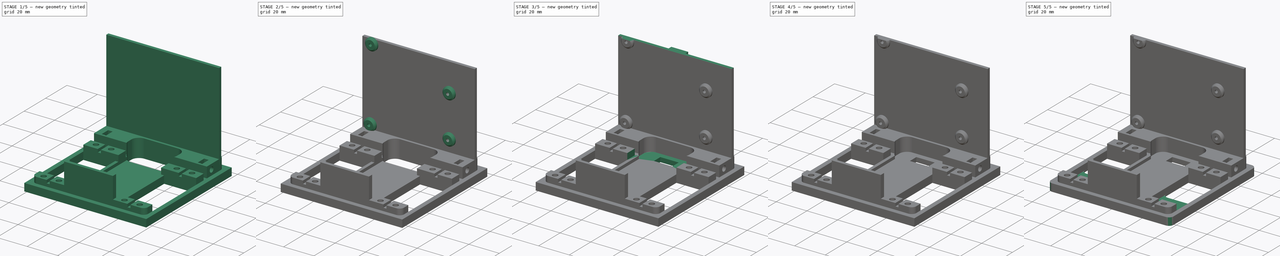
[diagram: build sequence overview — one tinted view per stage of 5, left to right]
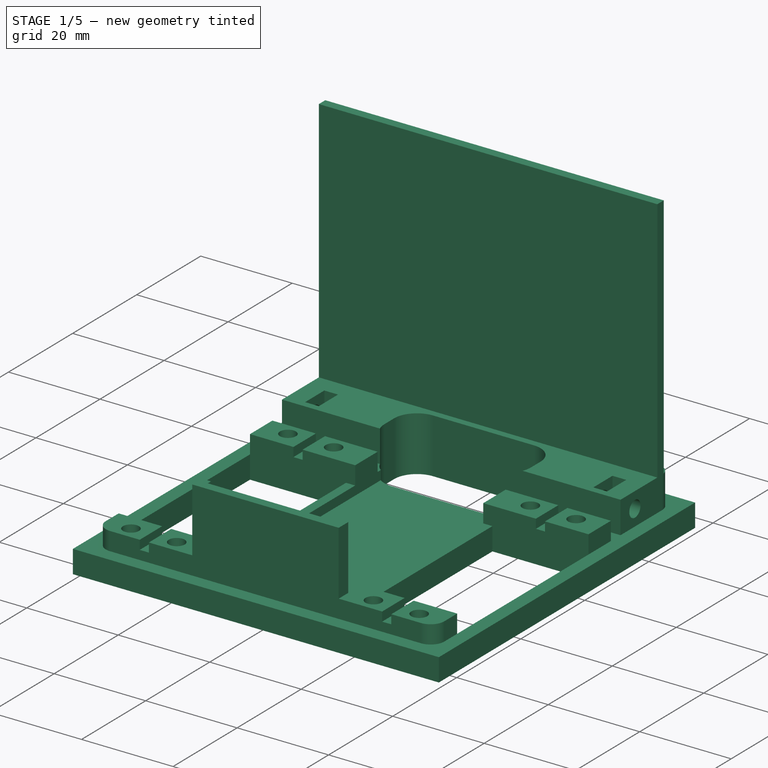
[diagram: stage 1 of 5 — iso view after this stage's code; geometry added in this stage tinted green]
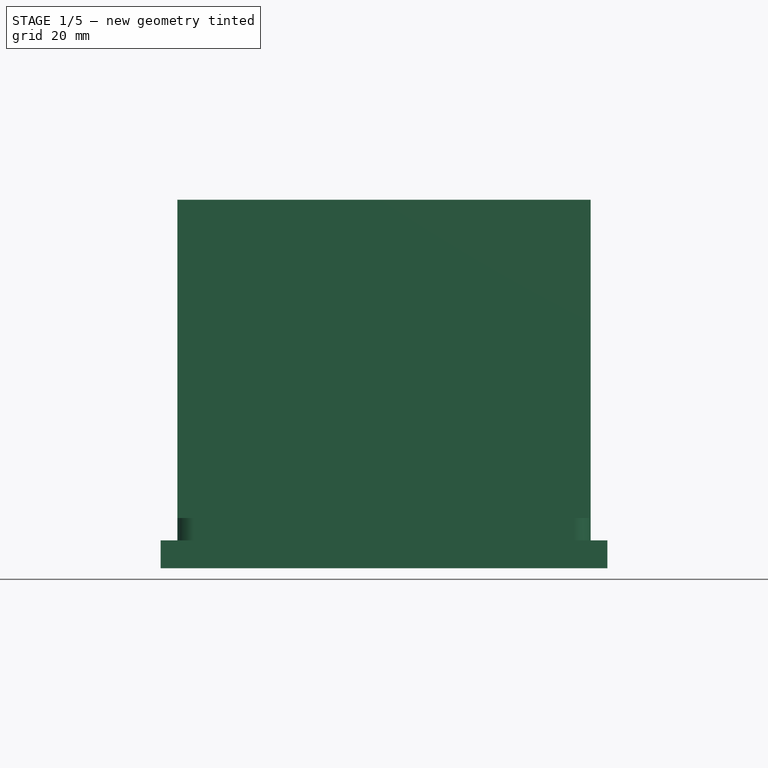
[diagram: stage 1 of 5 — front view after this stage's code; geometry added in this stage tinted green]
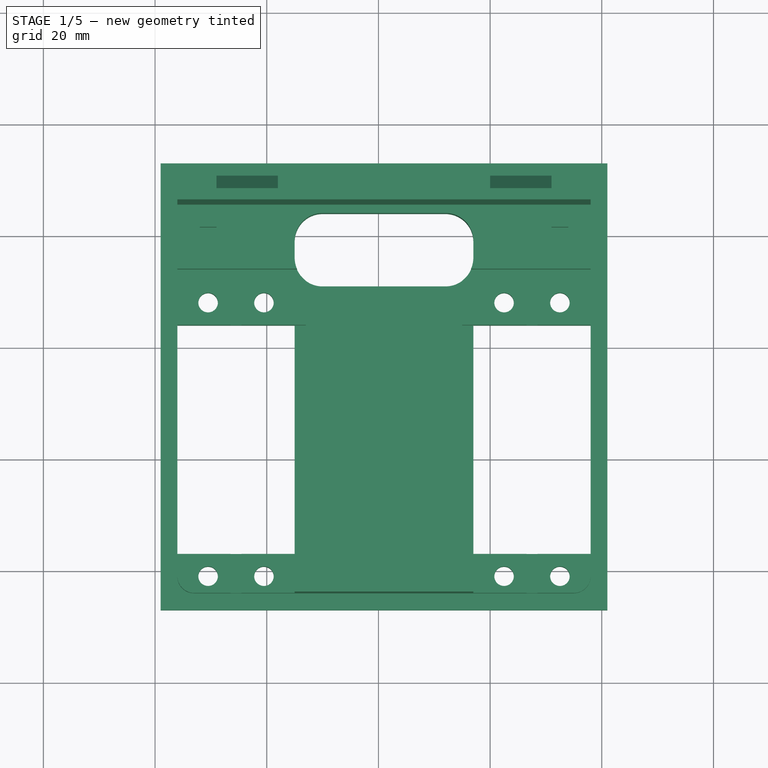
[diagram: stage 1 of 5 — top view after this stage's code; geometry added in this stage tinted green]
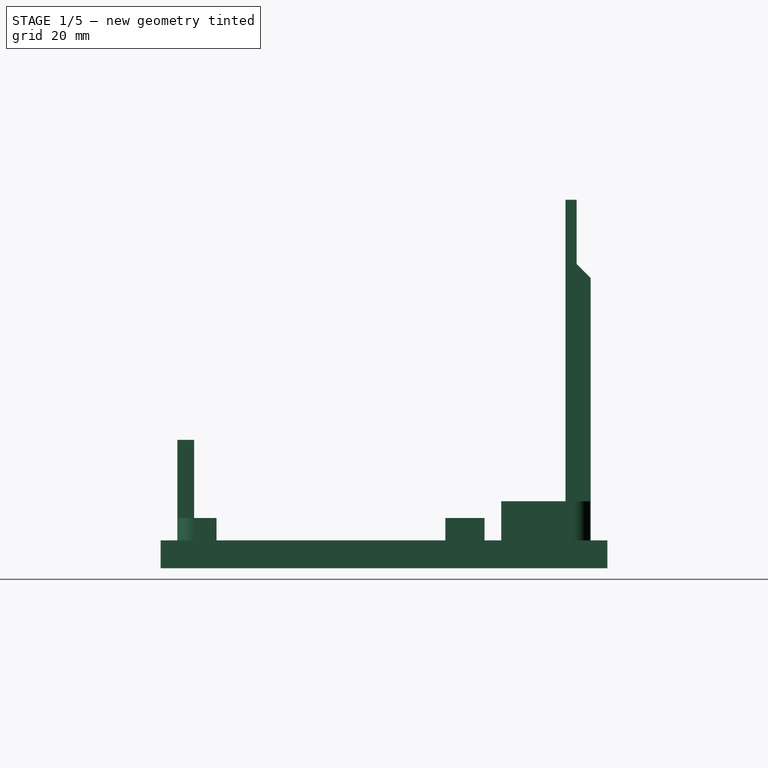
[diagram: stage 1 of 5 — right view after this stage's code; geometry added in this stage tinted green]
FCSTD DOCUMENT  (FreeCAD 0.16R6706 (Git))
Label: chassis_nano_sensor_shield
License: All rights reserved
LicenseURL: http://en.wikipedia.org/wiki/All_rights_reserved
objects: Sketcher::SketchObject×12, PartDesign::Pad×7, PartDesign::Pocket×5, PartDesign::Chamfer×2, PartDesign::Fillet×2, Part::Feature×1
note: 41 computed .brp shape members not serialized (recipe doc carries the construction recipe); baked Part::Feature solids carry a one-line shape summary decoded from their .brp

FEATURE [Part::Feature] Part__Feature  label="chassis"
  shape: bbox 80 x 80 x 55 mm, 137 faces (baked)
FEATURE [Sketcher::SketchObject] Sketch
  Placement = pos=(0,82.5,0) rot=(1,0,0;1.5708rad)
  Support = -> Part__Feature [Face104]
  sketch-geometry (4):
    g0: LineSegment StartX=-251.613 StartY=118.335 StartZ=0 EndX=-219.254 EndY=118.335 EndZ=0
    g1: LineSegment StartX=-219.254 StartY=118.335 StartZ=0 EndX=-219.254 EndY=87.8581 EndZ=0
    g2: LineSegment StartX=-219.254 StartY=87.8581 StartZ=0 EndX=-251.613 EndY=87.8581 EndZ=0
    g3: LineSegment StartX=-251.613 StartY=87.8581 StartZ=0 EndX=-251.613 EndY=118.335 EndZ=0
  constraints (8):
    c: Coincident(g0,g1)
    c: Coincident(g1,g2)
    c: Coincident(g2,g3)
    c: Coincident(g3,g0)
    c: Horizontal(g0)
    c: Horizontal(g2)
    c: Vertical(g1)
    c: Vertical(g3)
FEATURE [PartDesign::Pocket] Pocket
  Length = 3
  Sketch = -> Sketch
  Type = 0
FEATURE [Sketcher::SketchObject] Sketch001
  Placement = pos=(0,85.5,0) rot=(1,0,0;1.5708rad)
  Support = -> Pocket [Face127]
  sketch-geometry (4):
    g0: LineSegment StartX=-249.425 StartY=116.897 StartZ=0 EndX=-222.401 EndY=116.897 EndZ=0
    g1: LineSegment StartX=-222.401 StartY=116.897 StartZ=0 EndX=-222.401 EndY=90.6258 EndZ=0
    g2: LineSegment StartX=-222.401 StartY=90.6258 StartZ=0 EndX=-249.425 EndY=90.6258 EndZ=0
    g3: LineSegment StartX=-249.425 StartY=90.6258 StartZ=0 EndX=-249.425 EndY=116.897 EndZ=0
  constraints (8):
    c: Coincident(g0,g1)
    c: Coincident(g1,g2)
    c: Coincident(g2,g3)
    c: Coincident(g3,g0)
    c: Horizontal(g0)
    c: Horizontal(g2)
    c: Vertical(g1)
    c: Vertical(g3)
FEATURE [PartDesign::Pad] Pad
  Length = 2
  Length2 = 100
  Reversed = true
  Sketch = -> Sketch001
  Type = 0
FEATURE [Sketcher::SketchObject] Sketch002
  ExternalGeometry = -> [Pad]
  Placement = pos=(0,85.5,0) rot=(1,0,0;1.5708rad)
  Support = -> Pad [Face123]
  sketch-geometry (4):
    g0: LineSegment StartX=-276 StartY=77 StartZ=0 EndX=-202 EndY=77 EndZ=0
    g1: LineSegment StartX=-276 StartY=77 StartZ=0 EndX=-276 EndY=131 EndZ=0
    g2: LineSegment StartX=-276 StartY=131 StartZ=0 EndX=-202 EndY=131 EndZ=0
    g3: LineSegment StartX=-202 StartY=131 StartZ=0 EndX=-202 EndY=77 EndZ=0
  constraints (10):
    c: Coincident(g0,g-3)
    c: Coincident(g0,g-4)
    c: Coincident(g0,g1)
    c: Vertical(g1)
    c: Coincident(g1,g2)
    c: Horizontal(g2)
    c: Coincident(g2,g3)
    c: Coincident(g3,g0)
    c: Vertical(g3)
    c: DistanceY(g3,g3) = 54
FEATURE [PartDesign::Pad] Pad001
  Length = 2
  Length2 = 100
  Reversed = true
  Sketch = -> Sketch002
  Type = 0
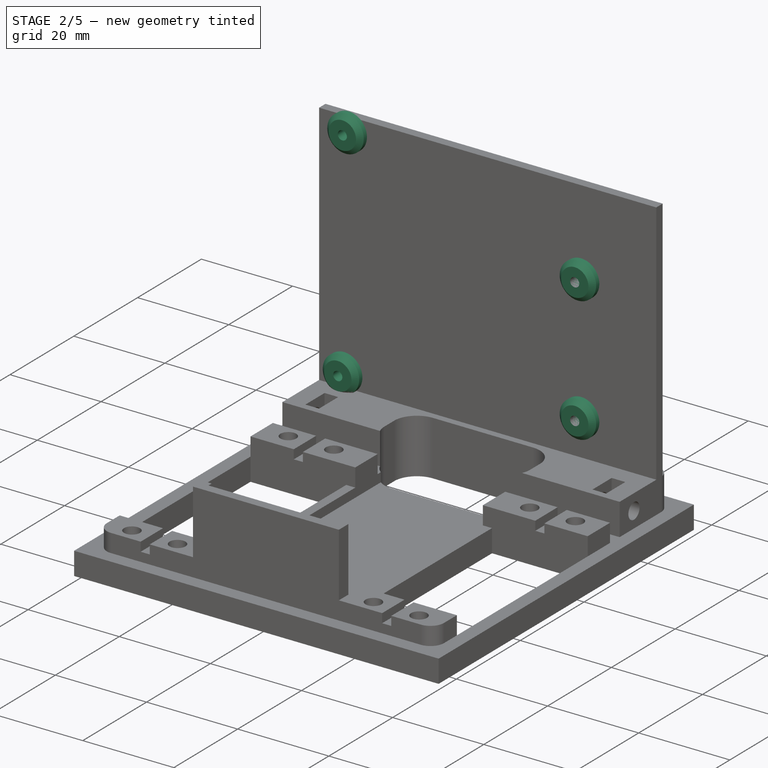
[diagram: stage 2 of 5 — iso view after this stage's code; geometry added in this stage tinted green]
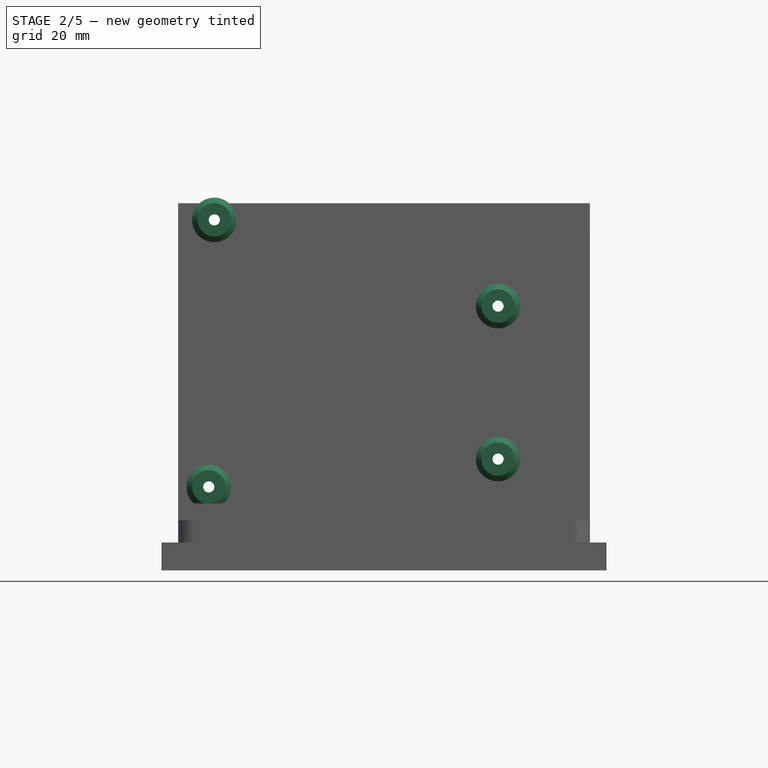
[diagram: stage 2 of 5 — front view after this stage's code; geometry added in this stage tinted green]
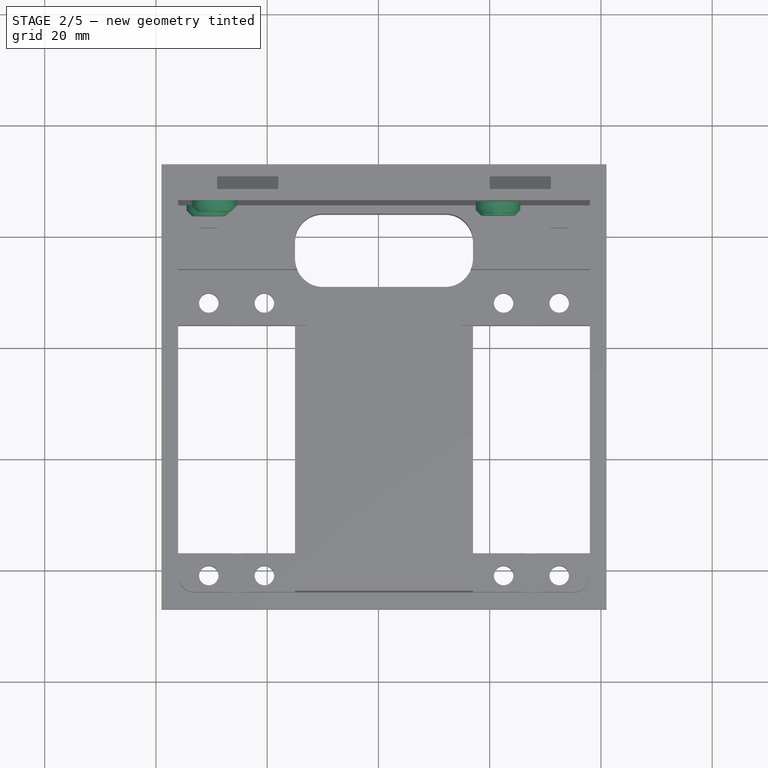
[diagram: stage 2 of 5 — top view after this stage's code; geometry added in this stage tinted green]
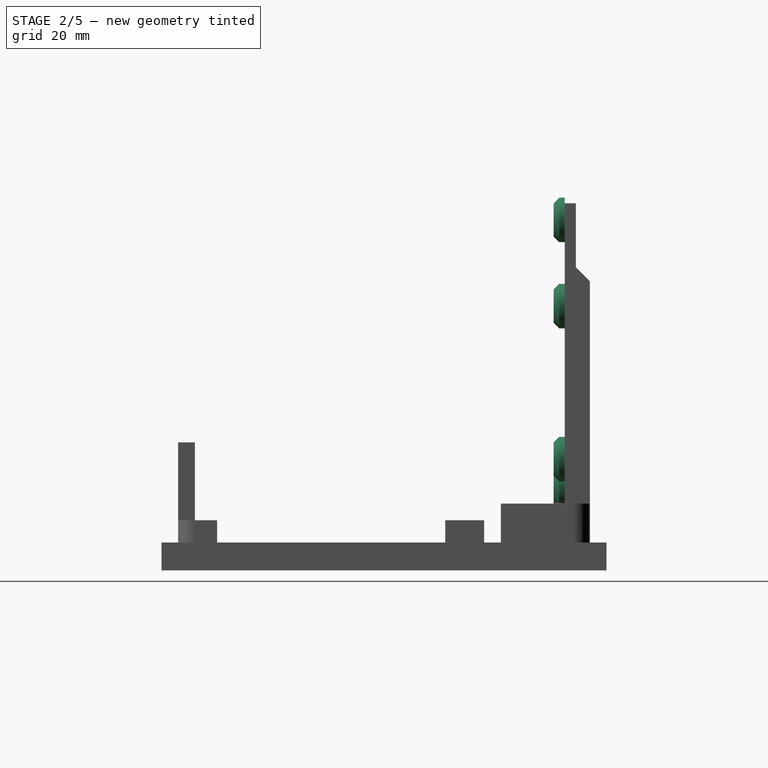
[diagram: stage 2 of 5 — right view after this stage's code; geometry added in this stage tinted green]
FEATURE [Sketcher::SketchObject] Sketch003
  ExternalGeometry = -> [Pad001]
  Placement = pos=(0,85.5,0) rot=(1,0,0;1.5708rad)
  Support = -> Pad001 [Face128]
  sketch-geometry (8):
    g0: LineSegment [constr] StartX=-273 StartY=130.5 StartZ=0 EndX=-216 EndY=130.5 EndZ=0
    g1: LineSegment [constr] StartX=-216 StartY=130.5 StartZ=0 EndX=-216 EndY=77.5 EndZ=0
    g2: LineSegment [constr] StartX=-216 StartY=77.5 StartZ=0 EndX=-273 EndY=77.5 EndZ=0
    g3: LineSegment [constr] StartX=-273 StartY=77.5 StartZ=0 EndX=-273 EndY=130.5 EndZ=0
    g4: Circle CenterX=-269.5 CenterY=128 CenterZ=0 NormalX=0 NormalY=0 NormalZ=1 Radius=1
    g5: Circle CenterX=-218.5 CenterY=112.5 CenterZ=0 NormalX=0 NormalY=0 NormalZ=1 Radius=1
    g6: Circle CenterX=-270.5 CenterY=80 CenterZ=0 NormalX=0 NormalY=0 NormalZ=1 Radius=1
    g7: Circle CenterX=-218.5 CenterY=85 CenterZ=0 NormalX=0 NormalY=0 NormalZ=1 Radius=1
  constraints (24):
    c: Coincident(g0,g1)
    c: Coincident(g1,g2)
    c: Coincident(g2,g3)
    c: Coincident(g3,g0)
    c: Horizontal(g0)
    c: Horizontal(g2)
    c: Vertical(g1)
    c: Vertical(g3)
    c: DistanceY(g1,g1) = 53
    c: DistanceX(g0,g0) = 57
    c: DistanceX(g-3,g0) = 3
    c: DistanceY(g0,g-3) = 0.5
    c: Radius(g4) = 1
    c: Equal(g4,g6)
    c: Equal(g4,g5)
    c: Equal(g4,g7)
    c: DistanceX(g0,g4) = 3.5
    c: DistanceY(g4,g0) = 2.5
    c: DistanceX(g2,g6) = 2.5
    c: DistanceY(g2,g6) = 2.5
    c: DistanceY(g5,g0) = 18
    c: DistanceY(g7,g5) = 27.5
    c: DistanceX(g5,g0) = 2.5
    c: DistanceX(g7,g1) = 2.5
FEATURE [PartDesign::Pocket] Pocket001
  Length = 5
  Sketch = -> Sketch003
  Type = 1
FEATURE [Sketcher::SketchObject] Sketch004
  ExternalGeometry = -> [Pocket001]
  Placement = pos=(0,85.5,0) rot=(1,0,0;1.5708rad)
  Support = -> Pocket001 [Face39]
  sketch-geometry (9):
    g0: Circle CenterX=-269.5 CenterY=128 CenterZ=0 NormalX=0 NormalY=0 NormalZ=1 Radius=4
    g1: ArcOfCircle CenterX=-270.5 CenterY=80 CenterZ=0 NormalX=0 NormalY=0 NormalZ=1 Radius=4 StartAngle=5.43889 EndAngle=10.2691
    g2: Circle CenterX=-218.5 CenterY=112.5 CenterZ=0 NormalX=0 NormalY=0 NormalZ=1 Radius=4
    g3: Circle CenterX=-218.5 CenterY=85 CenterZ=0 NormalX=0 NormalY=0 NormalZ=1 Radius=4
    g4: Circle CenterX=-269.5 CenterY=128 CenterZ=0 NormalX=0 NormalY=0 NormalZ=1 Radius=1
    g5: Circle CenterX=-218.5 CenterY=112.5 CenterZ=0 NormalX=0 NormalY=0 NormalZ=1 Radius=1
    g6: Circle CenterX=-218.5 CenterY=85 CenterZ=0 NormalX=0 NormalY=0 NormalZ=1 Radius=1
    g7: Circle CenterX=-270.5 CenterY=80 CenterZ=0 NormalX=0 NormalY=0 NormalZ=1 Radius=1
    g8: LineSegment StartX=-273.157 StartY=77.01 StartZ=0 EndX=-267.843 EndY=77.01 EndZ=0
  constraints (20):
    c: Coincident(g0,g-3)
    c: Coincident(g1,g-4)
    c: Coincident(g3,g-6)
    c: Coincident(g-5,g2)
    c: Radius(g2) = 4
    c: Equal(g2,g0)
    c: Equal(g2,g1)
    c: Equal(g2,g3)
    c: Coincident(g4,g0)
    c: Coincident(g5,g2)
    c: Coincident(g6,g3)
    c: Coincident(g7,g1)
    c: Radius(g4) = 1
    c: Equal(g4,g5)
    c: Equal(g4,g6)
    c: Equal(g4,g7)
    c: Horizontal(g8)
    c: Coincident(g1,g8)
    c: Coincident(g1,g8)
    c: DistanceY(g1,g-7) = -0.01
FEATURE [PartDesign::Pad] Pad002
  Length = 2
  Length2 = 100
  Sketch = -> Sketch004
  Type = 0
FEATURE [PartDesign::Chamfer] Chamfer
  Base = -> Pad002 [Edge309,Edge315,Edge313,Edge311]
  Size = 1
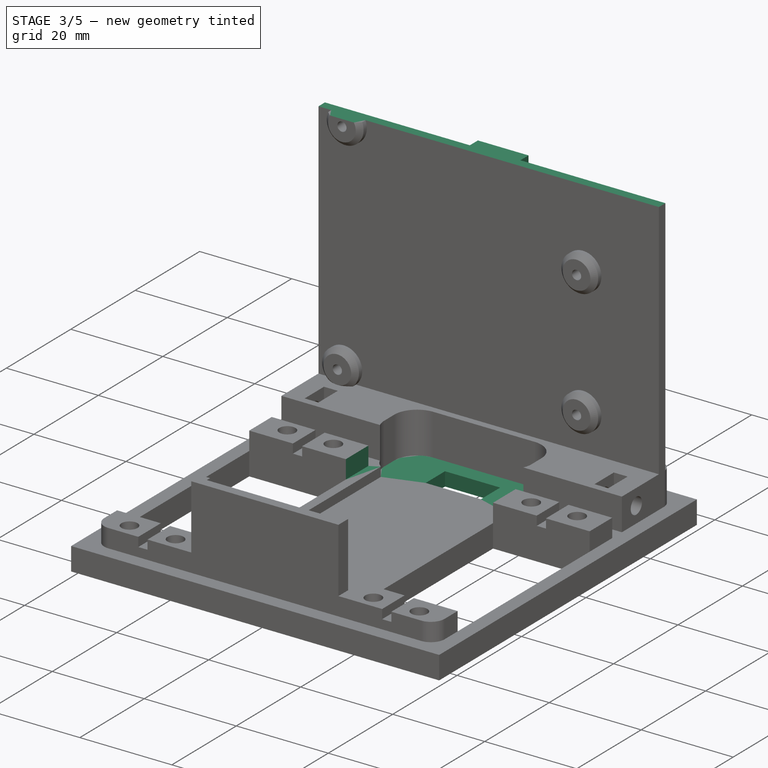
[diagram: stage 3 of 5 — iso view after this stage's code; geometry added in this stage tinted green]
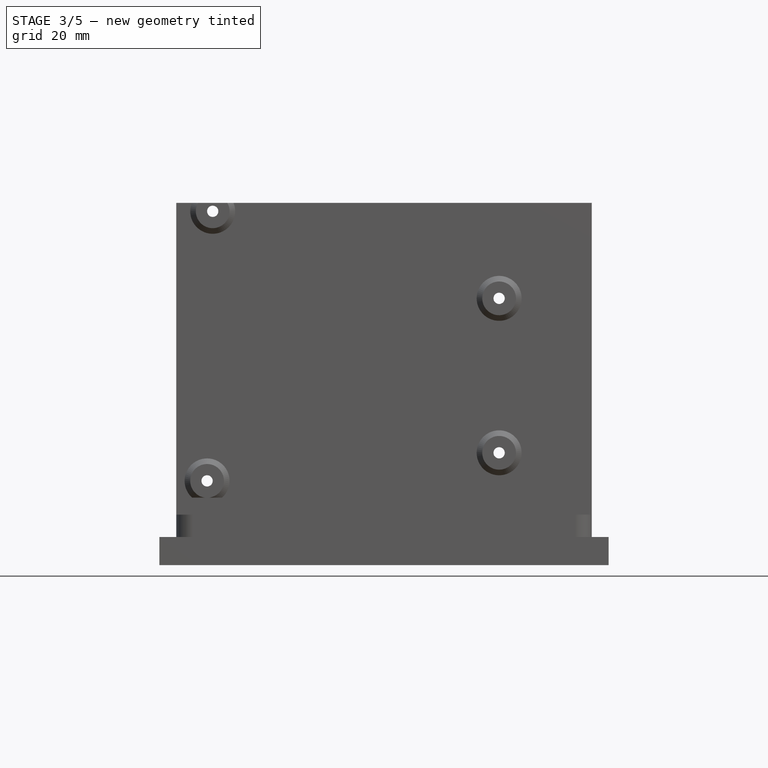
[diagram: stage 3 of 5 — front view after this stage's code; geometry added in this stage tinted green]
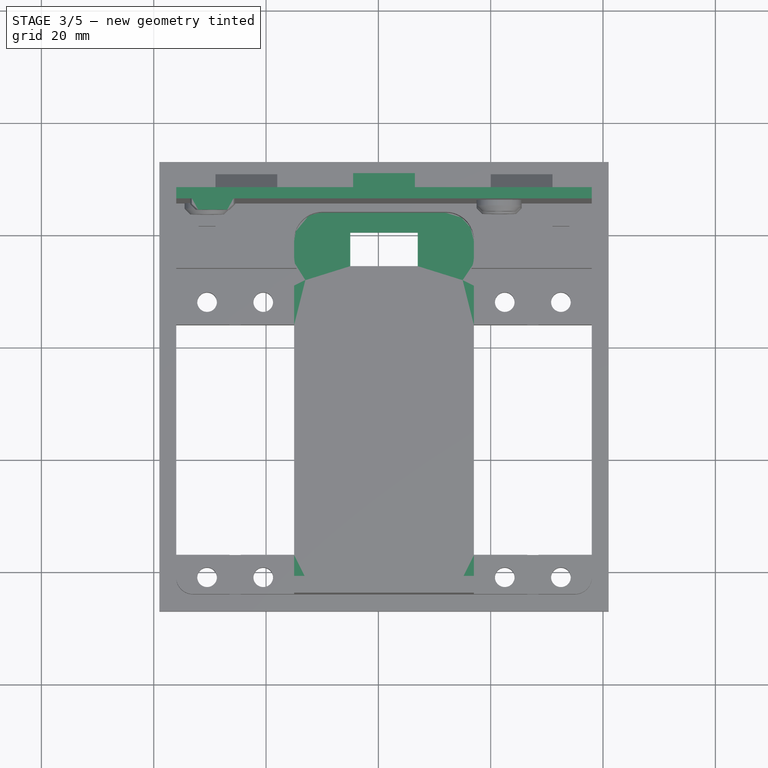
[diagram: stage 3 of 5 — top view after this stage's code; geometry added in this stage tinted green]
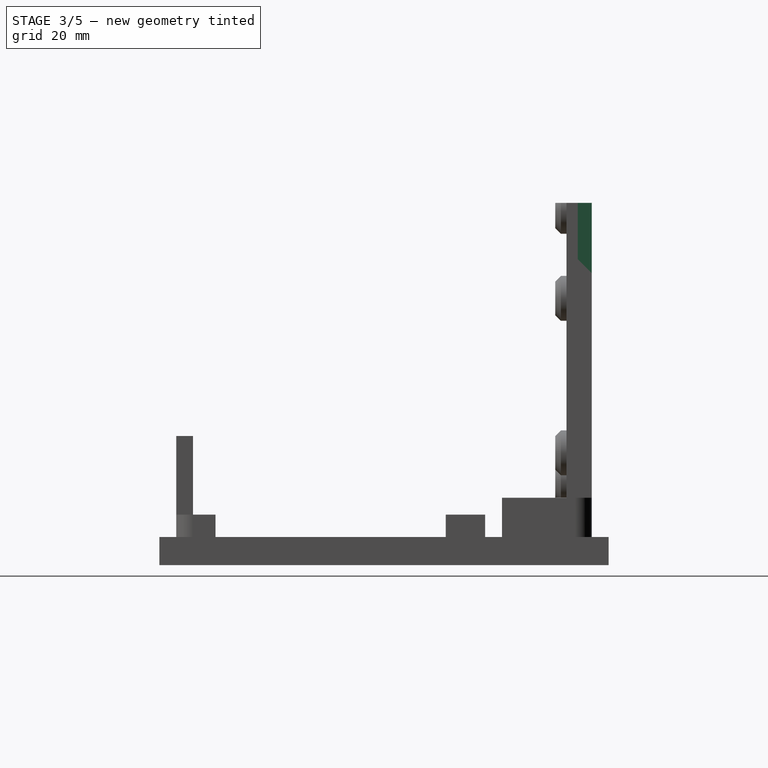
[diagram: stage 3 of 5 — right view after this stage's code; geometry added in this stage tinted green]
FEATURE [Sketcher::SketchObject] Sketch005
  ExternalGeometry = -> [Chamfer]
  Placement = pos=(0,87.5,0) rot=(0,0.707107,0.707107;3.14159rad)
  Support = -> Chamfer [Face17]
  sketch-geometry (4):
    g0: LineSegment StartX=233.5 StartY=131 StartZ=0 EndX=244.5 EndY=131 EndZ=0
    g1: LineSegment StartX=244.5 StartY=131 StartZ=0 EndX=244.5 EndY=96 EndZ=0
    g2: LineSegment StartX=244.5 StartY=96 StartZ=0 EndX=233.5 EndY=96 EndZ=0
    g3: LineSegment StartX=233.5 StartY=96 StartZ=0 EndX=233.5 EndY=131 EndZ=0
  constraints (12):
    c: Coincident(g0,g1)
    c: Coincident(g1,g2)
    c: Coincident(g2,g3)
    c: Coincident(g3,g0)
    c: Horizontal(g0)
    c: Horizontal(g2)
    c: Vertical(g1)
    c: Vertical(g3)
    c: DistanceX(g0,g0) = 11
    c: DistanceY(g1,g1) = 35
    c: DistanceY(g0,g-3) = 0
    c: DistanceX(g-3,g0) = 31.5
FEATURE [PartDesign::Pad] Pad003
  Length = 2.5
  Length2 = 100
  Sketch = -> Sketch005
  Type = 0
FEATURE [Sketcher::SketchObject] Sketch006
  ExternalGeometry = -> [Pad003]
  Placement = pos=(0,0,74) rot=(0,0,1;0rad)
  Support = -> Pad003 [Face78]
  sketch-geometry (4):
    g0: LineSegment StartX=-255 StartY=71 StartZ=0 EndX=-223 EndY=71 EndZ=0
    g1: LineSegment StartX=-223 StartY=71 StartZ=0 EndX=-223 EndY=19 EndZ=0
    g2: LineSegment StartX=-223 StartY=19 StartZ=0 EndX=-255 EndY=19 EndZ=0
    g3: LineSegment StartX=-255 StartY=19 StartZ=0 EndX=-255 EndY=71 EndZ=0
  constraints (11):
    c: Coincident(g0,g1)
    c: Coincident(g1,g2)
    c: Coincident(g2,g3)
    c: Coincident(g3,g0)
    c: Horizontal(g0)
    c: Horizontal(g2)
    c: Vertical(g1)
    c: Vertical(g3)
    c: Coincident(g2,g-3)
    c: Coincident(g-4,g1)
    c: DistanceY(g-5,g0) = 0
FEATURE [PartDesign::Pocket] Pocket002
  Length = 4
  Sketch = -> Sketch006
  Type = 0
FEATURE [Sketcher::SketchObject] Sketch007
  ExternalGeometry = -> [Pocket002]
  Placement = pos=(0,0,65) rot=(1,0,0;3.14159rad)
  Support = -> Pocket002 [Face29]
  sketch-geometry (8):
    g0: LineSegment StartX=-255 StartY=-84 StartZ=0 EndX=-223 EndY=-84 EndZ=0
    g1: LineSegment StartX=-223 StartY=-84 StartZ=0 EndX=-223 EndY=-71 EndZ=0
    g2: LineSegment StartX=-223 StartY=-71 StartZ=0 EndX=-255 EndY=-71 EndZ=0
    g3: LineSegment StartX=-255 StartY=-71 StartZ=0 EndX=-255 EndY=-84 EndZ=0
    g4: LineSegment StartX=-245 StartY=-80.5 StartZ=0 EndX=-233 EndY=-80.5 EndZ=0
    g5: LineSegment StartX=-233 StartY=-80.5 StartZ=0 EndX=-233 EndY=-74.5 EndZ=0
    g6: LineSegment StartX=-233 StartY=-74.5 StartZ=0 EndX=-245 EndY=-74.5 EndZ=0
    g7: LineSegment StartX=-245 StartY=-74.5 StartZ=0 EndX=-245 EndY=-80.5 EndZ=0
  constraints (24):
    c: Coincident(g0,g1)
    c: Coincident(g1,g2)
    c: Coincident(g2,g3)
    c: Coincident(g3,g0)
    c: Horizontal(g0)
    c: Horizontal(g2)
    c: Vertical(g1)
    c: Vertical(g3)
    c: Coincident(g4,g5)
    c: Coincident(g5,g6)
    c: Coincident(g6,g7)
    c: Coincident(g7,g4)
    c: Horizontal(g4)
    c: Horizontal(g6)
    c: Vertical(g5)
    c: Vertical(g7)
    c: DistanceX(g2,g-3) = 0
    c: DistanceY(g-3,g2) = 0
    c: DistanceY(g0,g-4) = 0
    c: DistanceX(g-4,g0) = 0
    c: DistanceX(g6,g6) = 12
    c: DistanceY(g7,g7) = 6
    c: DistanceX(g2,g6) = 10
    c: DistanceY(g5,g1) = 3.5
FEATURE [PartDesign::Pad] Pad004
  Length = 3
  Length2 = 100
  Reversed = true
  Sketch = -> Sketch007
  Type = 0
FEATURE [Sketcher::SketchObject] Sketch008
  ExternalGeometry = -> [Pad004]
  Placement = pos=(0,90,0) rot=(0,0.707107,0.707107;3.14159rad)
  Support = -> Pad004 [Face112]
  sketch-geometry (4):
    g0: LineSegment StartX=196.754 StartY=135.605 StartZ=0 EndX=282.973 EndY=135.605 EndZ=0
    g1: LineSegment StartX=282.973 StartY=135.605 StartZ=0 EndX=282.973 EndY=129.5 EndZ=0
    g2: LineSegment StartX=282.973 StartY=129.5 StartZ=0 EndX=196.754 EndY=129.5 EndZ=0
    g3: LineSegment StartX=196.754 StartY=129.5 StartZ=0 EndX=196.754 EndY=135.605 EndZ=0
  constraints (9):
    c: Coincident(g0,g1)
    c: Coincident(g1,g2)
    c: Coincident(g2,g3)
    c: Coincident(g3,g0)
    c: Horizontal(g0)
    c: Horizontal(g2)
    c: Vertical(g1)
    c: Vertical(g3)
    c: DistanceY(g2,g-3) = 1.5
FEATURE [PartDesign::Pocket] Pocket003
  Length = 5
  Sketch = -> Sketch008
  Type = 1
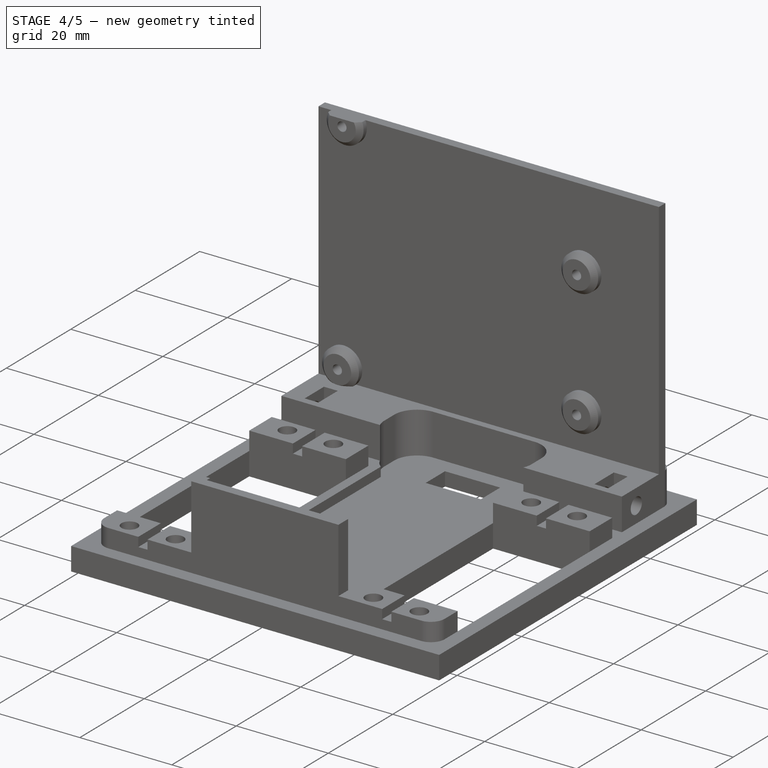
[diagram: stage 4 of 5 — iso view after this stage's code; geometry added in this stage tinted green]
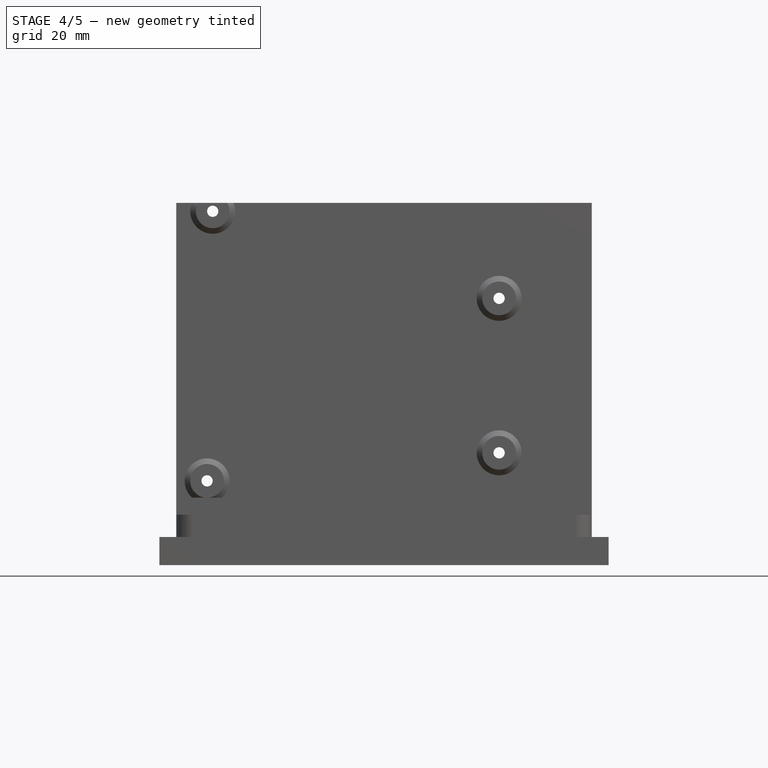
[diagram: stage 4 of 5 — front view after this stage's code; geometry added in this stage tinted green]
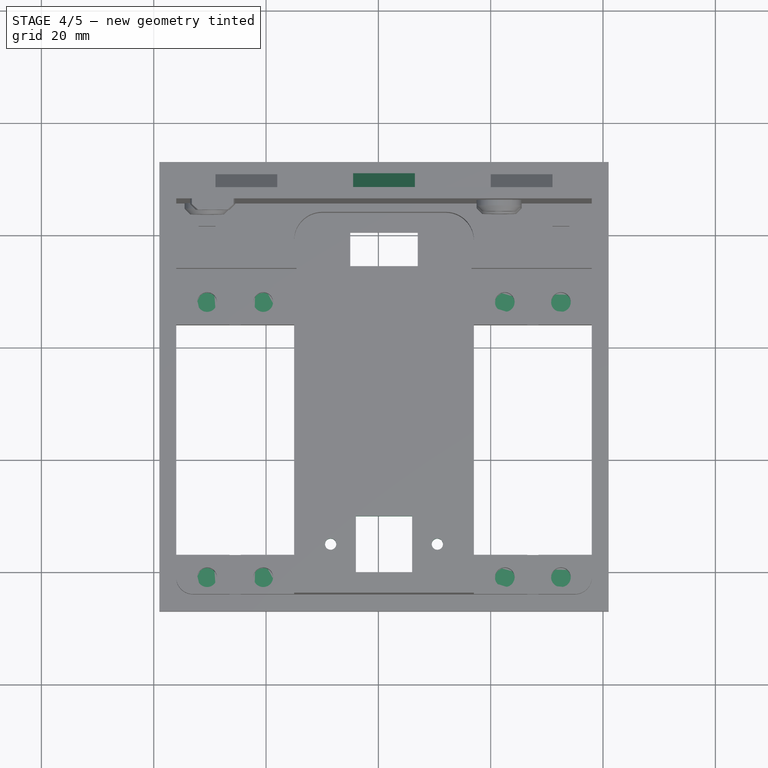
[diagram: stage 4 of 5 — top view after this stage's code; geometry added in this stage tinted green]
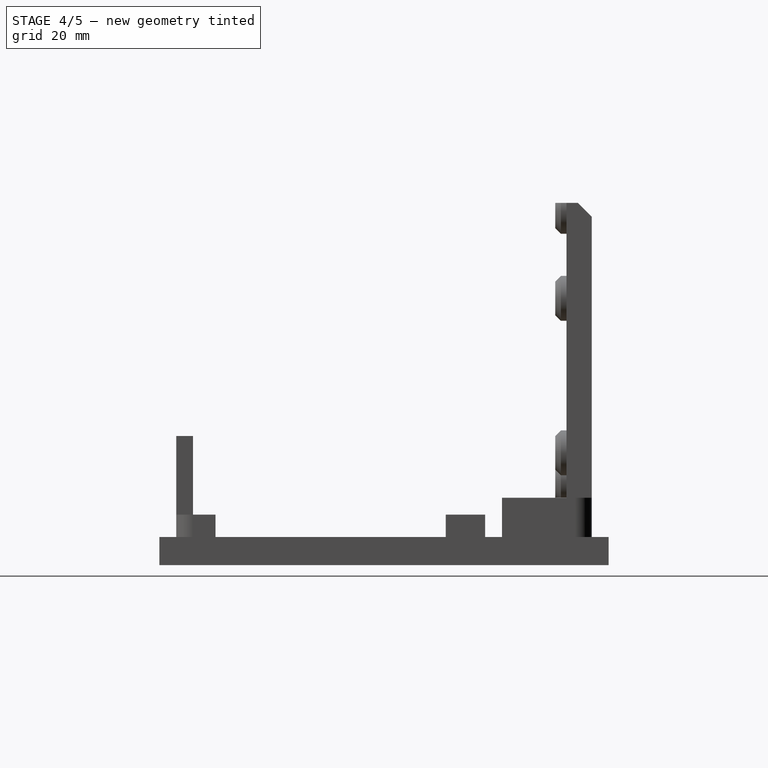
[diagram: stage 4 of 5 — right view after this stage's code; geometry added in this stage tinted green]
FEATURE [PartDesign::Chamfer] Chamfer001
  Base = -> Pocket003 [Edge358,Edge393]
  Size = 2.49
FEATURE [Sketcher::SketchObject] Sketch009
  Placement = pos=(0,0,68) rot=(1,0,0;3.14159rad)
  Support = -> Chamfer001 [Face157]
  sketch-geometry (16):
    g0: LineSegment StartX=-272.504 StartY=-17.0791 StartZ=0 EndX=-258.198 EndY=-17.0791 EndZ=0
    g1: LineSegment StartX=-258.198 StartY=-17.0791 StartZ=0 EndX=-258.198 EndY=-20.7879 EndZ=0
    g2: LineSegment StartX=-258.198 StartY=-20.7879 StartZ=0 EndX=-272.504 EndY=-20.7879 EndZ=0
    g3: LineSegment StartX=-272.504 StartY=-20.7879 StartZ=0 EndX=-272.504 EndY=-17.0791 EndZ=0
    g4: LineSegment StartX=-219.443 StartY=-17.0986 StartZ=0 EndX=-205.363 EndY=-17.0986 EndZ=0
    g5: LineSegment StartX=-205.363 StartY=-17.0986 StartZ=0 EndX=-205.363 EndY=-20.8647 EndZ=0
    g6: LineSegment StartX=-205.363 StartY=-20.8647 StartZ=0 EndX=-219.443 EndY=-20.8647 EndZ=0
    g7: LineSegment StartX=-219.443 StartY=-20.8647 StartZ=0 EndX=-219.443 EndY=-17.0986 EndZ=0
    g8: LineSegment StartX=-272.384 StartY=-66.0697 StartZ=0 EndX=-258.388 EndY=-66.0697 EndZ=0
    g9: LineSegment StartX=-258.388 StartY=-66.0697 StartZ=0 EndX=-258.388 EndY=-69.8674 EndZ=0
    g10: LineSegment StartX=-258.388 StartY=-69.8674 StartZ=0 EndX=-272.384 EndY=-69.8674 EndZ=0
    g11: LineSegment StartX=-272.384 StartY=-69.8674 StartZ=0 EndX=-272.384 EndY=-66.0697 EndZ=0
    g12: LineSegment StartX=-219.351 StartY=-66.1085 StartZ=0 EndX=-205.628 EndY=-66.1085 EndZ=0
    g13: LineSegment StartX=-205.628 StartY=-66.1085 StartZ=0 EndX=-205.628 EndY=-69.8788 EndZ=0
    g14: LineSegment StartX=-205.628 StartY=-69.8788 StartZ=0 EndX=-219.351 EndY=-69.8788 EndZ=0
    g15: LineSegment StartX=-219.351 StartY=-69.8788 StartZ=0 EndX=-219.351 EndY=-66.1085 EndZ=0
  constraints (32):
    c: Coincident(g0,g1)
    c: Coincident(g1,g2)
    c: Coincident(g2,g3)
    c: Coincident(g3,g0)
    c: Horizontal(g0)
    c: Horizontal(g2)
    c: Vertical(g1)
    c: Vertical(g3)
    c: Coincident(g4,g5)
    c: Coincident(g5,g6)
    c: Coincident(g6,g7)
    c: Coincident(g7,g4)
    c: Horizontal(g4)
    c: Horizontal(g6)
    c: Vertical(g5)
    c: Vertical(g7)
    c: Coincident(g8,g9)
    c: Coincident(g9,g10)
    c: Coincident(g10,g11)
    c: Coincident(g11,g8)
    c: Horizontal(g8)
    c: Horizontal(g10)
    c: Vertical(g9)
    c: Vertical(g11)
    c: Coincident(g12,g13)
    c: Coincident(g13,g14)
    c: Coincident(g14,g15)
    c: Coincident(g15,g12)
    c: Horizontal(g12)
    c: Horizontal(g14)
    c: Vertical(g13)
    c: Vertical(g15)
FEATURE [PartDesign::Pad] Pad005
  Length = 0.3
  Length2 = 100
  Reversed = true
  Sketch = -> Sketch009
  Type = 0
FEATURE [Sketcher::SketchObject] Sketch010
  ExternalGeometry = -> [Pad005]
  Placement = pos=(0,0,68) rot=(0,0,1;0rad)
  Support = -> Pad005 [Face87]
  sketch-geometry (7):
    g0: LineSegment StartX=-244 StartY=30 StartZ=0 EndX=-234 EndY=30 EndZ=0
    g1: LineSegment StartX=-234 StartY=30 StartZ=0 EndX=-234 EndY=20 EndZ=0
    g2: LineSegment StartX=-234 StartY=20 StartZ=0 EndX=-244 EndY=20 EndZ=0
    g3: LineSegment StartX=-244 StartY=20 StartZ=0 EndX=-244 EndY=30 EndZ=0
    g4: Circle CenterX=-248.5 CenterY=25 CenterZ=0 NormalX=0 NormalY=0 NormalZ=1 Radius=1
    g5: Circle CenterX=-229.5 CenterY=25 CenterZ=0 NormalX=0 NormalY=0 NormalZ=1 Radius=1
    g6: LineSegment [constr] StartX=-248.5 StartY=25 StartZ=0 EndX=-229.5 EndY=25 EndZ=0
  constraints (20):
    c: Coincident(g0,g1)
    c: Coincident(g1,g2)
    c: Coincident(g2,g3)
    c: Coincident(g3,g0)
    c: Horizontal(g0)
    c: Horizontal(g2)
    c: Vertical(g1)
    c: Vertical(g3)
    c: Coincident(g6,g4)
    c: Coincident(g6,g5)
    c: Horizontal(g6)
    c: Radius(g4) = 1
    c: Equal(g4,g5)
    c: Symmetric(g0,g1,g6)
    c: DistanceX(g4,g5) = 19
    c: DistanceX(g0,g0) = 10
    c: DistanceY(g1,g1) = 10
    c: DistanceX(g1,g5) = 4.5
    c: DistanceX(g-3,g2) = 9
    c: DistanceY(g-3,g2) = 2
FEATURE [PartDesign::Pocket] Pocket004
  Length = 5
  Sketch = -> Sketch010
  Type = 1
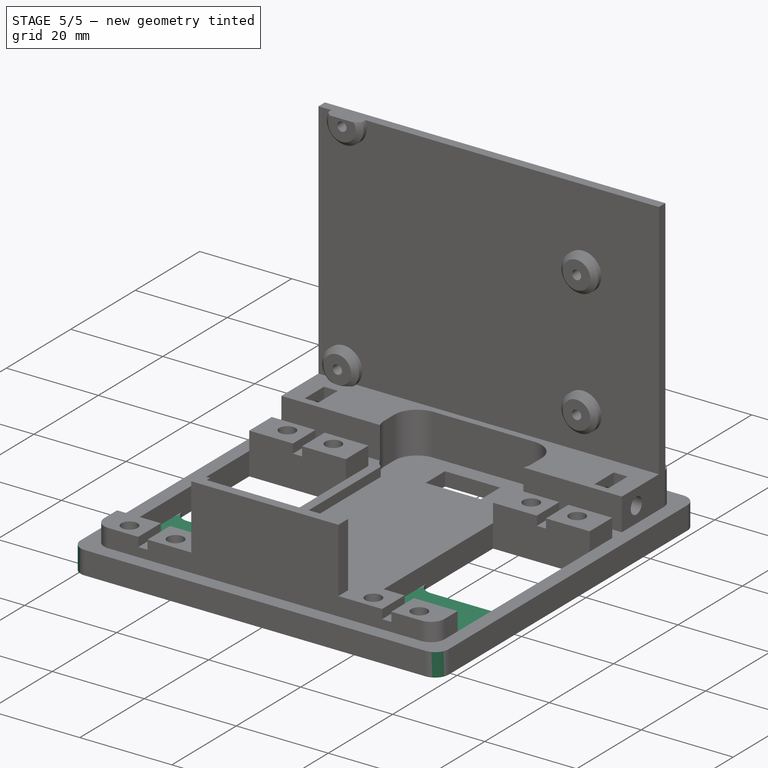
[diagram: stage 5 of 5 — iso view after this stage's code; geometry added in this stage tinted green]
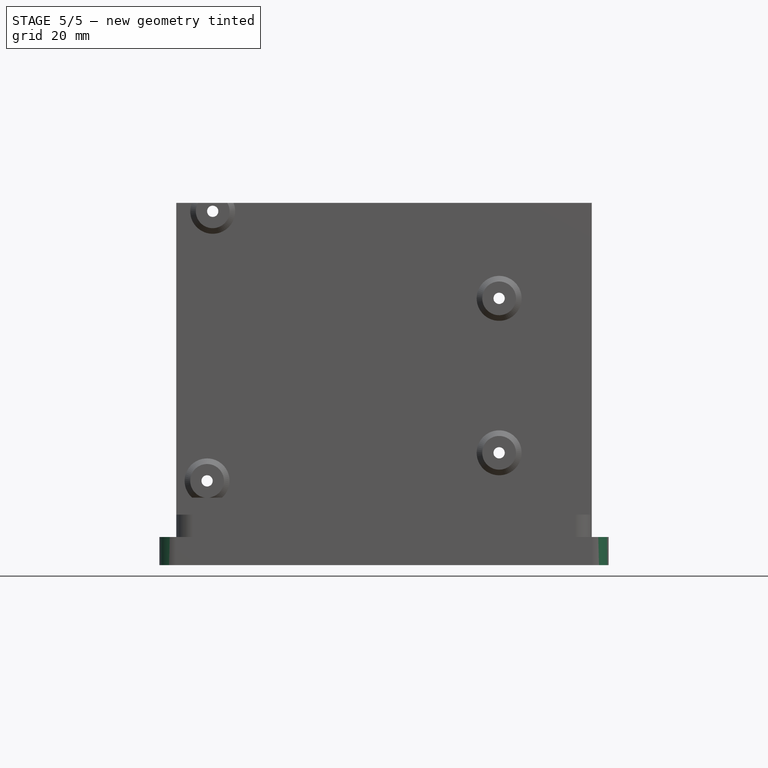
[diagram: stage 5 of 5 — front view after this stage's code; geometry added in this stage tinted green]
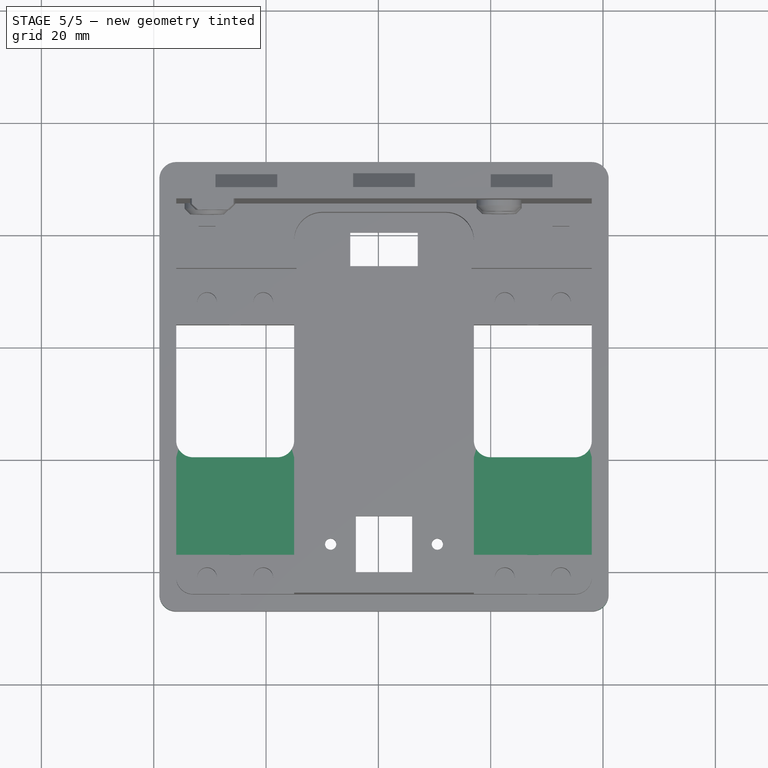
[diagram: stage 5 of 5 — top view after this stage's code; geometry added in this stage tinted green]
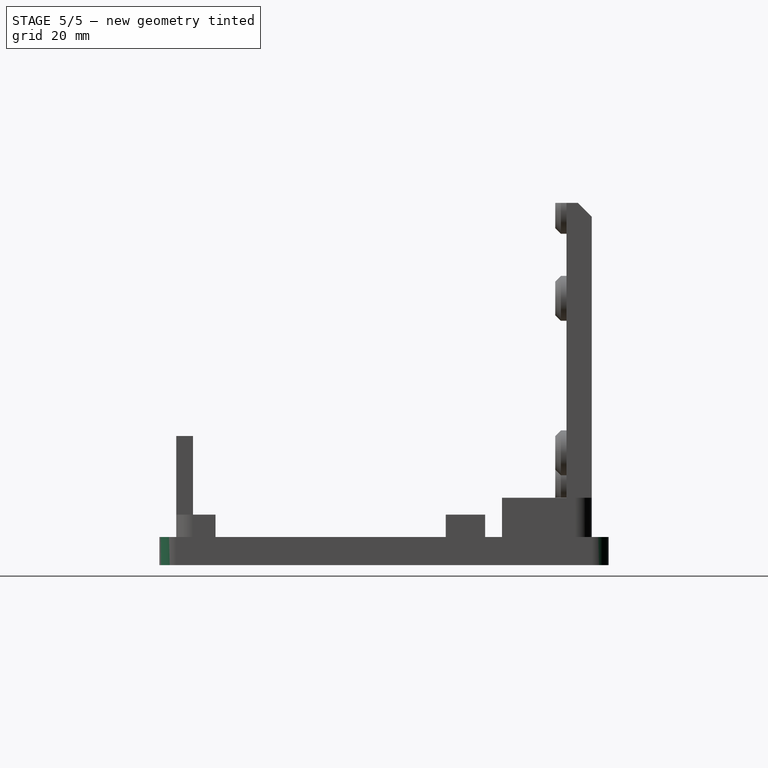
[diagram: stage 5 of 5 — right view after this stage's code; geometry added in this stage tinted green]
FEATURE [Sketcher::SketchObject] Sketch011
  ExternalGeometry = -> [Pocket004]
  Placement = pos=(0,0,65) rot=(1,0,0;3.14159rad)
  Support = -> Pocket004 [Face86]
  sketch-geometry (8):
    g0: LineSegment StartX=-255 StartY=-40.5 StartZ=0 EndX=-276 EndY=-40.5 EndZ=0
    g1: LineSegment StartX=-276 StartY=-40.5 StartZ=0 EndX=-276 EndY=-23 EndZ=0
    g2: LineSegment StartX=-276 StartY=-23 StartZ=0 EndX=-255 EndY=-23 EndZ=0
    g3: LineSegment StartX=-255 StartY=-23 StartZ=0 EndX=-255 EndY=-40.5 EndZ=0
    g4: LineSegment StartX=-223 StartY=-23 StartZ=0 EndX=-202 EndY=-23 EndZ=0
    g5: LineSegment StartX=-202 StartY=-23 StartZ=0 EndX=-202 EndY=-40.5 EndZ=0
    g6: LineSegment StartX=-202 StartY=-40.5 StartZ=0 EndX=-223 EndY=-40.5 EndZ=0
    g7: LineSegment StartX=-223 StartY=-40.5 StartZ=0 EndX=-223 EndY=-23 EndZ=0
  constraints (22):
    c: Coincident(g0,g1)
    c: Coincident(g1,g2)
    c: Coincident(g2,g3)
    c: Coincident(g3,g0)
    c: Horizontal(g0)
    c: Horizontal(g2)
    c: Vertical(g1)
    c: Vertical(g3)
    c: Coincident(g4,g5)
    c: Coincident(g5,g6)
    c: Coincident(g6,g7)
    c: Coincident(g7,g4)
    c: Horizontal(g4)
    c: Horizontal(g6)
    c: Vertical(g5)
    c: Vertical(g7)
    c: Coincident(g1,g-3)
    c: Coincident(g2,g-3)
    c: Coincident(g4,g-4)
    c: Coincident(g4,g-4)
    c: DistanceY(g3,g3) = 17.5
    c: DistanceY(g7,g7) = 17.5
FEATURE [PartDesign::Pad] Pad006
  Length = 1
  Length2 = 100
  Reversed = true
  Sketch = -> Sketch011
  Type = 0
FEATURE [PartDesign::Fillet] Fillet
  Base = -> Pad006 [Edge185,Edge201,Edge245,Edge229]
  Radius = 3
FEATURE [PartDesign::Fillet] Fillet001  label="chassis_nano_sensor_shield"
  Base = -> Fillet [Edge145,Edge144,Edge146,Edge143]
  Radius = 3
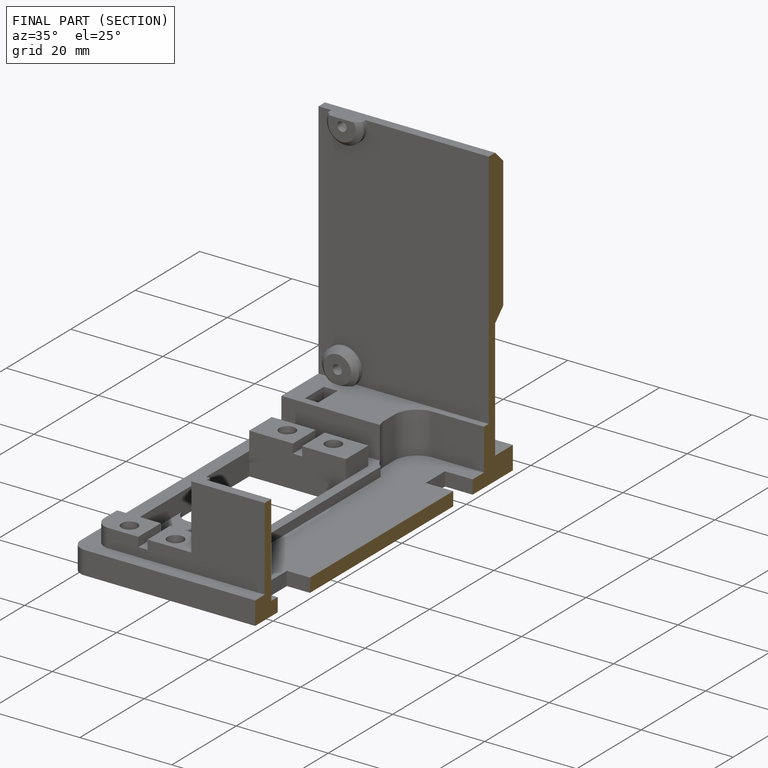
[diagram: finished part — half-section view (interior)]
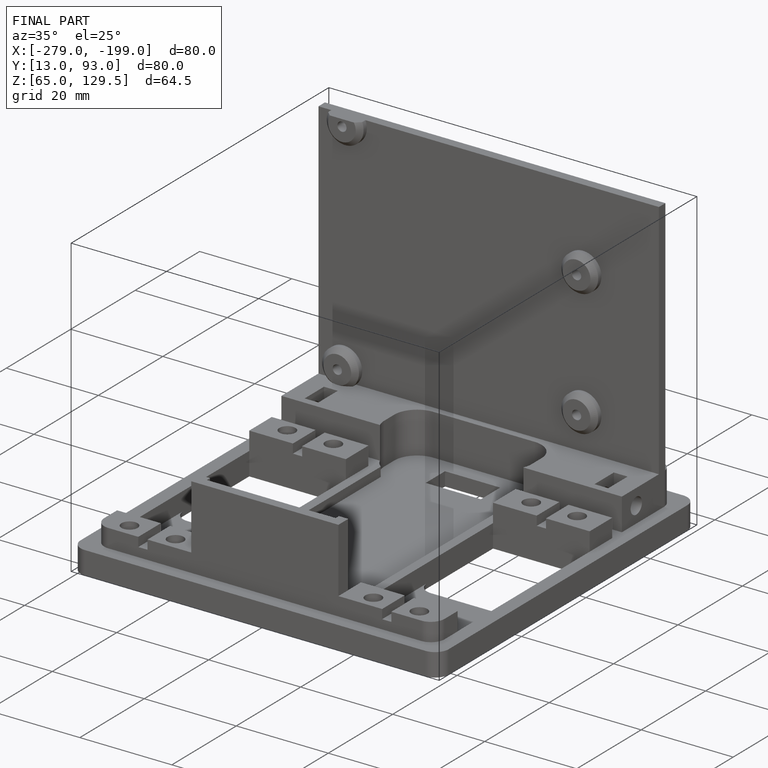
[diagram: finished part — iso view with bounding-box wireframe]
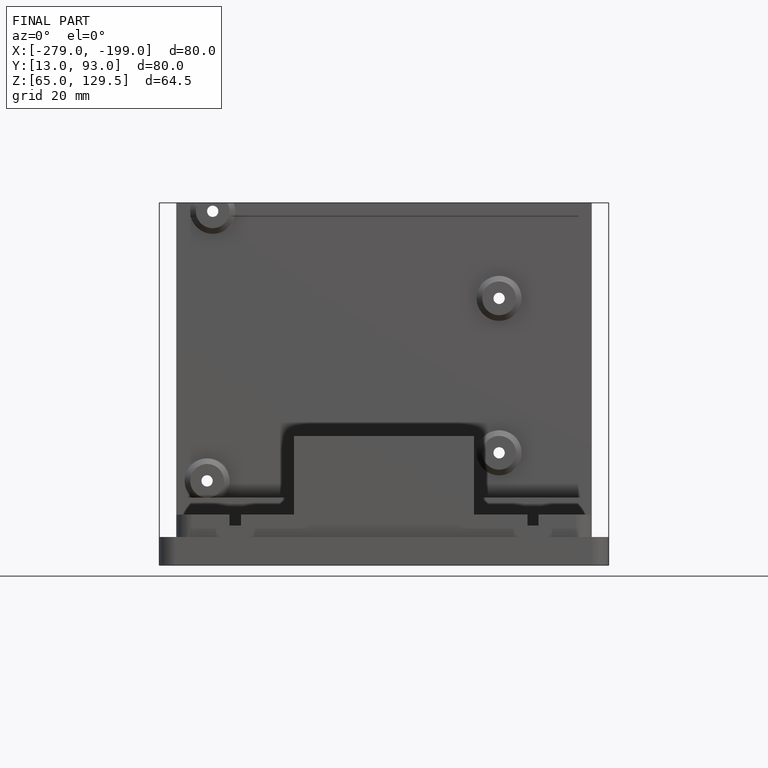
[diagram: finished part — front view with bounding-box wireframe]
